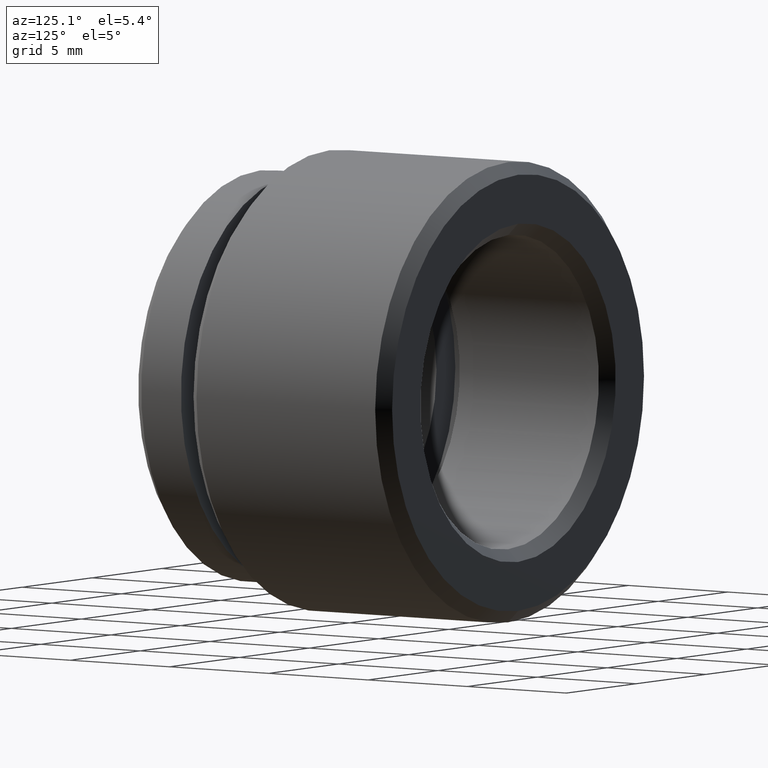
[diagram: clean part render]
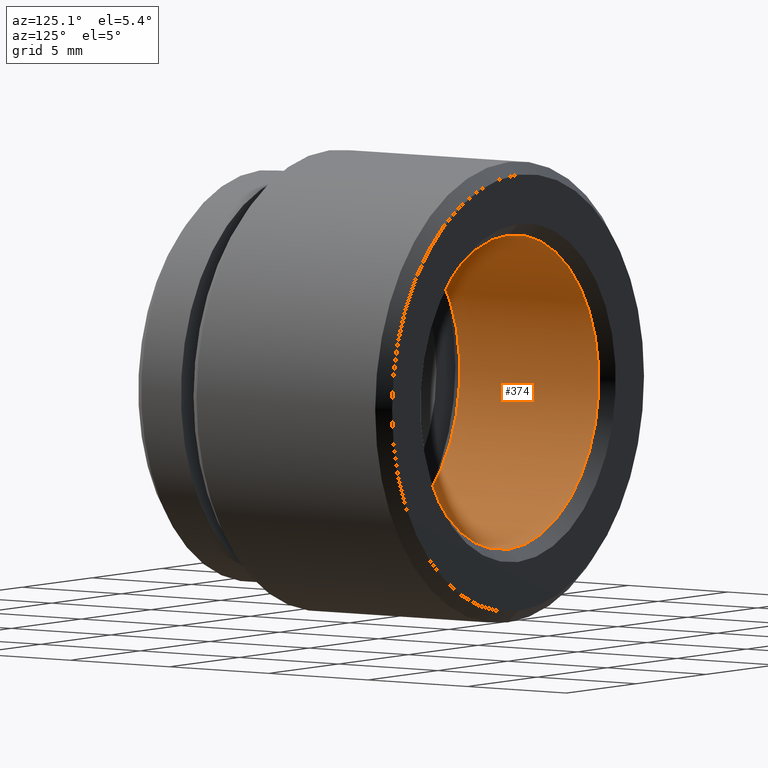
[diagram: same view with one face highlighted and labeled with its STEP entity id]
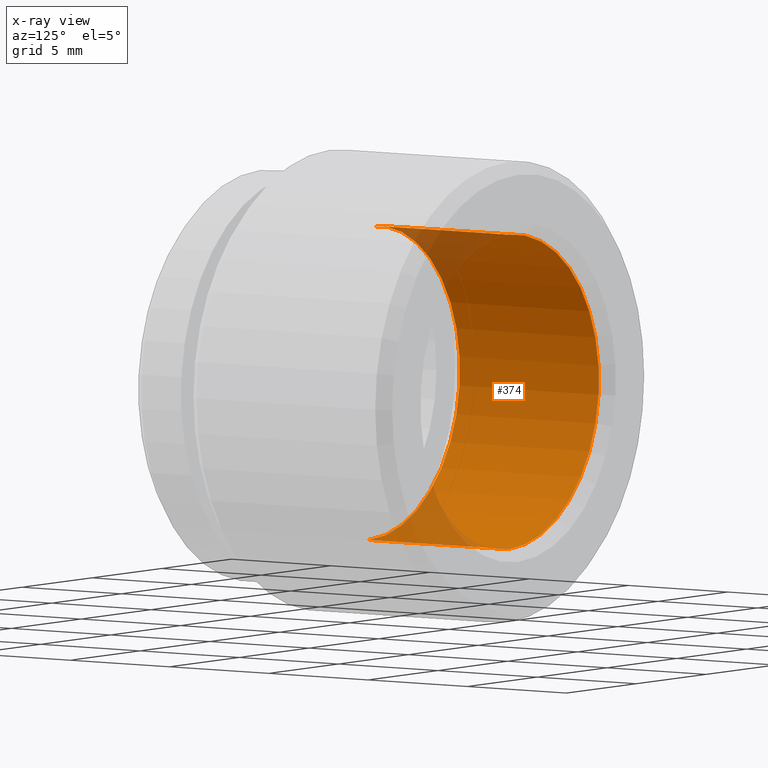
[diagram: x-ray of the same camera — body ghosted, the highlighted face saturated]
A machine part, auxiliary view. The second image highlights one B-rep face of the part: STEP entity #374.
The next image is the same camera in x-ray: the body ghosted, the highlighted face saturated — about 11% of this face is hidden behind the body in this view.
In plain terms, the highlighted cylindrical surface (partial cylindrical patch) has radius 6.5 mm, axis along (-0, -1, -0).
Its self-contained STEP definition (entity closure, byte-faithful):
#4 = DIRECTION ( 'NONE',  ( 0.0000000000000000000, 0.0000000000000000000, 1.000000000000000000 ) ) ;
#12 = CIRCLE ( 'NONE', #136, 6.500000000000000900 ) ;
#25 = CIRCLE ( 'NONE', #345, 6.500000000000000900 ) ;
#27 = VERTEX_POINT ( 'NONE', #661 ) ;
#38 = ORIENTED_EDGE ( 'NONE', *, *, #53, .T. ) ;
#53 = EDGE_CURVE ( 'NONE', #709, #27, #25, .T. ) ;
#66 = DIRECTION ( 'NONE',  ( -0.0000000000000000000, -1.000000000000000000, -0.0000000000000000000 ) ) ;
#84 = VECTOR ( 'NONE', #225, 1000.000000000000000 ) ;
#92 = VERTEX_POINT ( 'NONE', #830 ) ;
#136 = AXIS2_PLACEMENT_3D ( 'NONE', #845, #816, #4 ) ;
#225 = DIRECTION ( 'NONE',  ( -0.0000000000000000000, -1.000000000000000000, -0.0000000000000000000 ) ) ;
#281 = VERTEX_POINT ( 'NONE', #314 ) ;
#296 = FACE_OUTER_BOUND ( 'NONE', #811, .T. ) ;
#304 = AXIS2_PLACEMENT_3D ( 'NONE', #860, #589, #858 ) ;
#314 = CARTESIAN_POINT ( 'NONE',  ( 0.0000000000000000000, 12.99999999999999600, -6.500000000000000900 ) ) ;
#319 = CARTESIAN_POINT ( 'NONE',  ( 7.960204194457796500E-016, 0.0000000000000000000, 6.500000000000000900 ) ) ;
#334 = DIRECTION ( 'NONE',  ( 0.0000000000000000000, 0.0000000000000000000, -1.000000000000000000 ) ) ;
#345 = AXIS2_PLACEMENT_3D ( 'NONE', #762, #562, #334 ) ;
#352 = CARTESIAN_POINT ( 'NONE',  ( 0.0000000000000000000, 0.0000000000000000000, -6.500000000000000900 ) ) ;
#374 = ADVANCED_FACE ( 'NONE', ( #296 ), #874, .F. ) ;
#484 = ORIENTED_EDGE ( 'NONE', *, *, #647, .F. ) ;
#500 = ORIENTED_EDGE ( 'NONE', *, *, #801, .T. ) ;
#562 = DIRECTION ( 'NONE',  ( -0.0000000000000000000, -1.000000000000000000, -0.0000000000000000000 ) ) ;
#589 = DIRECTION ( 'NONE',  ( -0.0000000000000000000, -1.000000000000000000, -0.0000000000000000000 ) ) ;
#647 = EDGE_CURVE ( 'NONE', #281, #27, #651, .T. ) ;
#651 = LINE ( 'NONE', #352, #84 ) ;
#661 = CARTESIAN_POINT ( 'NONE',  ( 0.0000000000000000000, 6.000000000000000000, -6.500000000000000900 ) ) ;
#664 = CARTESIAN_POINT ( 'NONE',  ( 7.960204194457796500E-016, 6.000000000000000000, 6.500000000000000900 ) ) ;
#709 = VERTEX_POINT ( 'NONE', #664 ) ;
#762 = CARTESIAN_POINT ( 'NONE',  ( 0.0000000000000000000, 6.000000000000000000, 0.0000000000000000000 ) ) ;
#801 = EDGE_CURVE ( 'NONE', #281, #92, #12, .T. ) ;
#811 = EDGE_LOOP ( 'NONE', ( #500, #857, #38, #484 ) ) ;
#816 = DIRECTION ( 'NONE',  ( -0.0000000000000000000, 1.000000000000000000, -0.0000000000000000000 ) ) ;
#826 = VECTOR ( 'NONE', #66, 1000.000000000000000 ) ;
#830 = CARTESIAN_POINT ( 'NONE',  ( 7.960204194457796500E-016, 12.99999999999999600, 6.500000000000000900 ) ) ;
#834 = LINE ( 'NONE', #319, #826 ) ;
#838 = EDGE_CURVE ( 'NONE', #92, #709, #834, .T. ) ;
#845 = CARTESIAN_POINT ( 'NONE',  ( 0.0000000000000000000, 12.99999999999999600, 0.0000000000000000000 ) ) ;
#857 = ORIENTED_EDGE ( 'NONE', *, *, #838, .T. ) ;
#858 = DIRECTION ( 'NONE',  ( 0.0000000000000000000, 0.0000000000000000000, -1.000000000000000000 ) ) ;
#860 = CARTESIAN_POINT ( 'NONE',  ( 0.0000000000000000000, 0.0000000000000000000, 0.0000000000000000000 ) ) ;
#874 = CYLINDRICAL_SURFACE ( 'NONE', #304, 6.500000000000000900 ) ;